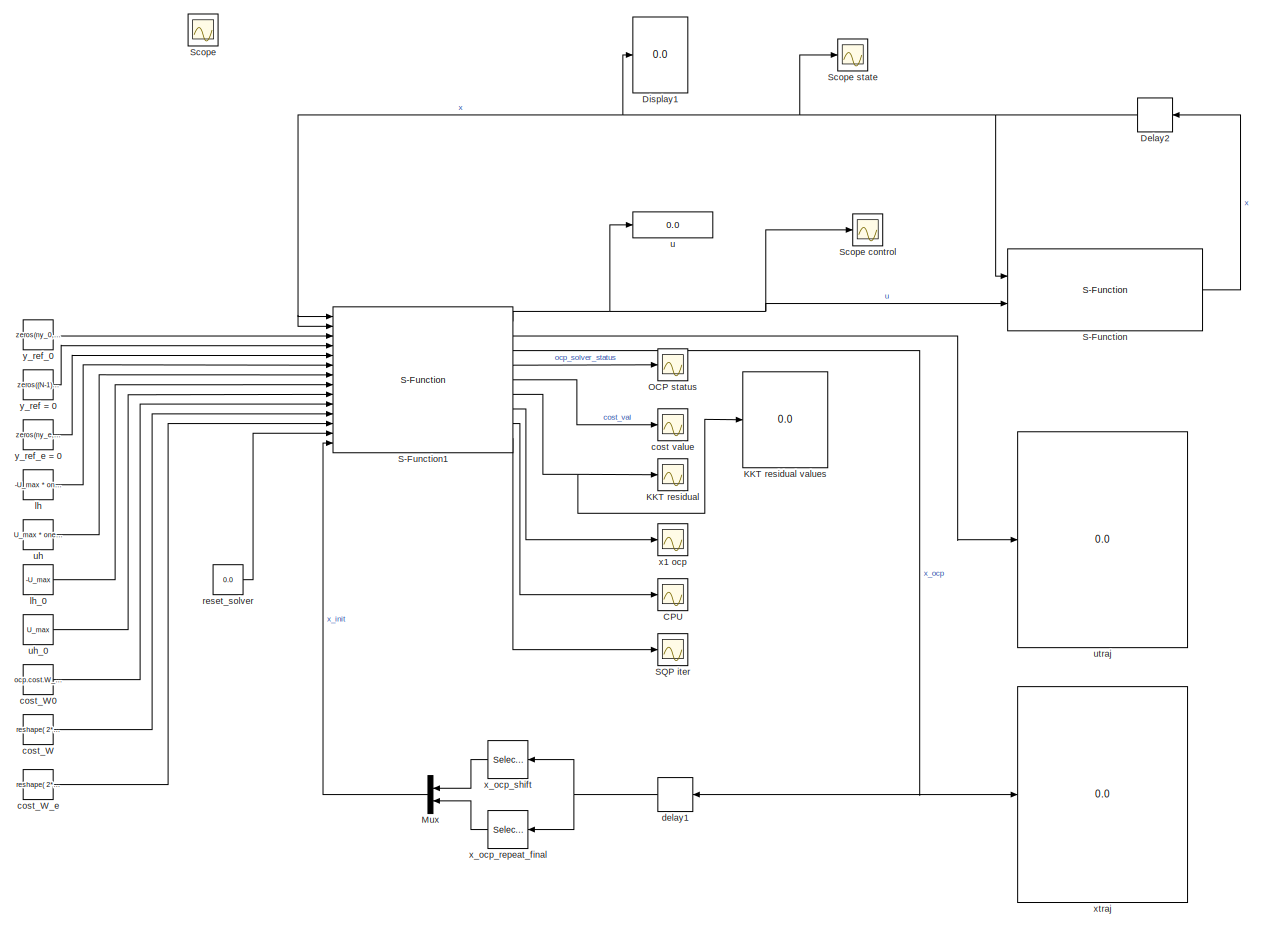
[diagram: root canvas - part 1/1, most of the canvas]
MODEL slx_85df2413f5a9
KIND model
CONFIG AbsTol = auto
CONFIG EnableMultiTasking = off
CONFIG FixedStep = auto
CONFIG MaxStep = auto
CONFIG MinStep = auto
CONFIG RelTol = 1e-3
CONFIG SampleTimeConstraint = Unconstrained
CONFIG Solver = ode45
CONFIG SolverName = ode45
CONFIG StartTime = 0.0
CONFIG StopTime = 1
BLOCK [Scope] CPU
  Description = status
  Floating = off
  NumInputPorts = 1
  Ports = [1]
  ScopeSpecificationString = Simulink.scopes.TimeScopeBlockCfg('CurrentConfiguration', extmgr.ConfigurationSet(extmgr.Configuration('Core','General UI',true,'FigureColor',[0.156862745098039 0.156862745098039 0.156862745098039]),extmgr.Configuration('Core','Source UI',true),extmgr.Configuration('Sources','WiredSimulink',true,'DataLoggingVariableName','ScopeData3','DataLoggingSaveFormat','StructureWithTime','DataLoggingDecimati...<+2711ch>
BLOCK [Delay] Delay2
  DelayLength = 1
  InitialCondition = x0
  InputPortMap = u0
  Ports = [1, 1]
BLOCK [Display] Display1
  Decimation = 1
  Ports = [1]
BLOCK [Scope] KKT residual
  Description = status
  Floating = off
  NumInputPorts = 1
  Ports = [1]
  ScopeSpecificationString = Simulink.scopes.TimeScopeBlockCfg('CurrentConfiguration', extmgr.ConfigurationSet(extmgr.Configuration('Core','General UI',true,'FigureColor',[0.156862745098039 0.156862745098039 0.156862745098039]),extmgr.Configuration('Core','Source UI',true),extmgr.Configuration('Sources','WiredSimulink',true,'DataLoggingVariableName','ScopeData1','DataLoggingSaveFormat','StructureWithTime','DataLoggingDecimati...<+2735ch>
BLOCK [Display] KKT residual values
  Decimation = 1
  Ports = [1]
BLOCK [Mux] Mux
  DisplayOption = bar
  Inputs = 2
  Ports = [2, 1]
BLOCK [Scope] OCP status
  Description = status
  Floating = off
  NumInputPorts = 1
  Ports = [1]
  ScopeSpecificationString = Simulink.scopes.TimeScopeBlockCfg('CurrentConfiguration', extmgr.ConfigurationSet(extmgr.Configuration('Core','General UI',true,'FigureColor',[0.156862745098039 0.156862745098039 0.156862745098039]),extmgr.Configuration('Core','Source UI',true),extmgr.Configuration('Sources','WiredSimulink',true,'DataLoggingSaveFormat','StructureWithTime','DataLoggingDecimation','1','DataLoggingDecimateData',true)...<+2680ch>
BLOCK [S-Function] S-Function
  EnableBusSupport = off
  FunctionName = acados_sim_solver_sfunction_pendulum
  Ports = [2, 1]
  SFcnIsStateOwnerBlock = off
  SFunctionDeploymentMode = off
BLOCK [S-Function] S-Function1
  EnableBusSupport = off
  FunctionName = acados_solver_sfunction_pendulum
  Ports = [14, 9]
  SFcnIsStateOwnerBlock = off
  SFunctionDeploymentMode = off
BLOCK [Scope] SQP iter
  Description = status
  Floating = off
  NumInputPorts = 1
  Ports = [1]
  ScopeSpecificationString = Simulink.scopes.TimeScopeBlockCfg('CurrentConfiguration', extmgr.ConfigurationSet(extmgr.Configuration('Core','General UI',true,'FigureColor',[0.156862745098039 0.156862745098039 0.156862745098039]),extmgr.Configuration('Core','Source UI',true),extmgr.Configuration('Sources','WiredSimulink',true,'DataLoggingVariableName','ScopeData1','DataLoggingSaveFormat','StructureWithTime','DataLoggingDecimati...<+2711ch>
BLOCK [Scope] Scope
  Floating = off
  IOType = viewer
  NumInputPorts = 1
  Ports = []
  ScopeSpecificationString = Simulink.scopes.TimeScopeBlockCfg('CurrentConfiguration', extmgr.ConfigurationSet(extmgr.Configuration('Core','General UI',true,'FigureColor',[0.156862745098039 0.156862745098039 0.156862745098039]),extmgr.Configuration('Core','Source UI',true),extmgr.Configuration('Sources','WiredSimulink',true,'DataLoggingVariableName','ScopeData1','DataLoggingSaveFormat','StructureWithTime','DataLoggingDecimati...<+2775ch>
BLOCK [Scope] Scope control
  Floating = off
  NumInputPorts = 1
  Ports = [1]
  ScopeSpecificationString = Simulink.scopes.TimeScopeBlockCfg('CurrentConfiguration', extmgr.ConfigurationSet(extmgr.Configuration('Core','General UI',true,'FigureColor',[0.156862745098039 0.156862745098039 0.156862745098039]),extmgr.Configuration('Core','Source UI',true),extmgr.Configuration('Sources','WiredSimulink',true,'DataLoggingVariableName','ScopeData1','DataLoggingSaveFormat','StructureWithTime','DataLoggingDecimati...<+2711ch>
BLOCK [Scope] Scope state
  Floating = off
  NumInputPorts = 1
  Ports = [1]
  ScopeSpecificationString = Simulink.scopes.TimeScopeBlockCfg('CurrentConfiguration', extmgr.ConfigurationSet(extmgr.Configuration('Core','General UI',true,'FigureColor',[0.156862745098039 0.156862745098039 0.156862745098039]),extmgr.Configuration('Core','Source UI',true),extmgr.Configuration('Sources','WiredSimulink',true,'DataLoggingVariableName','ScopeData1','DataLoggingSaveFormat','StructureWithTime','DataLoggingDecimati...<+2737ch>
BLOCK [Scope] cost value
  Description = status
  Floating = off
  NumInputPorts = 1
  Ports = [1]
  ScopeSpecificationString = Simulink.scopes.TimeScopeBlockCfg('CurrentConfiguration', extmgr.ConfigurationSet(extmgr.Configuration('Core','General UI',true,'FigureColor',[0.156862745098039 0.156862745098039 0.156862745098039]),extmgr.Configuration('Core','Source UI',true),extmgr.Configuration('Sources','WiredSimulink',true,'DataLoggingVariableName','ScopeData4','DataLoggingSaveFormat','StructureWithTime','DataLoggingDecimati...<+2759ch>
BLOCK [Constant] cost_W
  Value = reshape( 2*diag([1e3, 1e3, 1e-2, 1e-2, 1e-2]), 25, 1)
BLOCK [Constant] cost_W0
  Value = ocp.cost.W_0(:);
BLOCK [Constant] cost_W_e
  Value = reshape( 2*diag([1e3, 1e3, 1e-2, 1e-2]), 16, 1)
BLOCK [Delay] delay1
  DelayLength = 1
  InitialCondition = zeros(nx*(N+1),1)
  InputPortMap = u0
  Ports = [1, 1]
BLOCK [Constant] lh
  Value = -U_max * ones((N-1)*nu, 1)
BLOCK [Constant] lh_0
  Value = -U_max
BLOCK [Constant] reset_solver
  Value = 0.0
BLOCK [Display] u
  Decimation = 1
  Ports = [1]
BLOCK [Constant] uh
  Value = U_max * ones((N-1)*nu, 1)
BLOCK [Constant] uh_0
  Value = U_max
BLOCK [Display] utraj
  Decimation = 1
  Ports = [1]
BLOCK [Scope] x1 ocp
  Description = status
  Floating = off
  NumInputPorts = 1
  Ports = [1]
  ScopeSpecificationString = Simulink.scopes.TimeScopeBlockCfg('CurrentConfiguration', extmgr.ConfigurationSet(extmgr.Configuration('Core','General UI',true,'FigureColor',[0.156862745098039 0.156862745098039 0.156862745098039]),extmgr.Configuration('Core','Source UI',true),extmgr.Configuration('Sources','WiredSimulink',true,'DataLoggingVariableName','ScopeData2','DataLoggingSaveFormat','StructureWithTime','DataLoggingDecimati...<+2750ch>
BLOCK [Selector] x_ocp_repeat_final
  IndexMode = Zero-based
  IndexOptions = Starting index (dialog)
  Indices = N*nx
  InputPortWidth = (N+1)*nx
  OutputSizes = nx
  Ports = [1, 1]
BLOCK [Selector] x_ocp_shift
  IndexMode = Zero-based
  IndexOptions = Starting index (dialog)
  Indices = nx
  InputPortWidth = (N+1)*nx
  OutputSizes = N*nx
  Ports = [1, 1]
BLOCK [Display] xtraj
  Decimation = 1
  Ports = [1]
BLOCK [Constant] y_ref = 0
  Value = zeros((N-1)*ny,1)
BLOCK [Constant] y_ref_0
  Value = zeros(ny_0,1)
BLOCK [Constant] y_ref_e = 0
  Value = zeros(ny_e,1)
NET Delay2:1 -> Display1:1, S-Function1:1, S-Function1:2, S-Function:1, Scope state:1
LINE Mux:1 -> S-Function1:14
NET S-Function1:1 -> S-Function:2, Scope control:1, u:1
LINE S-Function1:2 -> utraj:1
NET S-Function1:3 -> delay1:1, xtraj:1
LINE S-Function1:4 -> OCP status:1
LINE S-Function1:5 -> cost value:1
NET S-Function1:6 -> KKT residual values:1, KKT residual:1
LINE S-Function1:7 -> x1 ocp:1
LINE S-Function1:8 -> CPU:1
LINE S-Function1:9 -> SQP iter:1
LINE S-Function:1 -> Delay2:1
LINE cost_W0:1 -> S-Function1:10
LINE cost_W:1 -> S-Function1:11
LINE cost_W_e:1 -> S-Function1:12
NET delay1:1 -> x_ocp_repeat_final:1, x_ocp_shift:1
LINE lh:1 -> S-Function1:6
LINE lh_0:1 -> S-Function1:8
LINE reset_solver:1 -> S-Function1:13
LINE uh:1 -> S-Function1:7
LINE uh_0:1 -> S-Function1:9
LINE x_ocp_repeat_final:1 -> Mux:2
LINE x_ocp_shift:1 -> Mux:1
LINE y_ref = 0:1 -> S-Function1:4
LINE y_ref_0:1 -> S-Function1:3
LINE y_ref_e = 0:1 -> S-Function1:5
note: NET lines group one-source signal fan-out (src -> all destinations, sorted); 1:1 wires keep LINE
